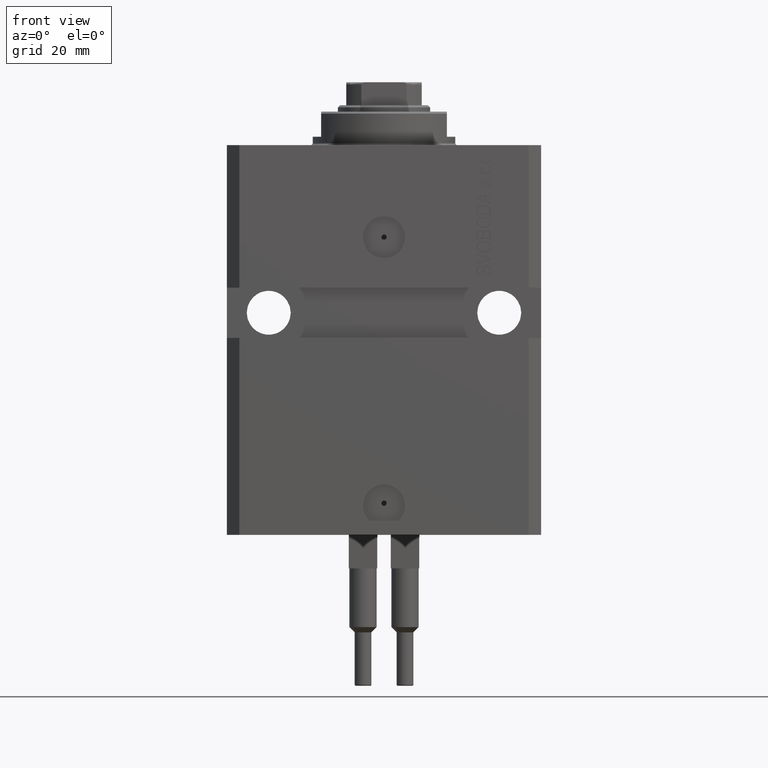
[diagram: clean part render]
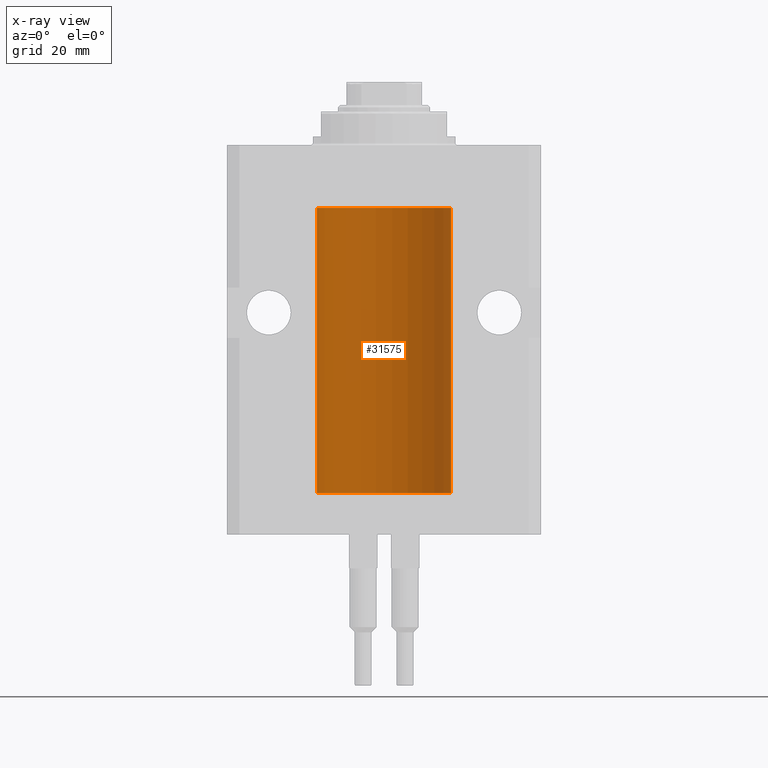
[diagram: x-ray — body ghosted, one internal face saturated and labeled with its STEP entity id]
A machine part, front view, then the same camera in x-ray: the body is ghosted and one INTERNAL B-rep face — a face not visible from any outside direction — is saturated and labeled: STEP entity #31575.
In plain terms, the highlighted cylindrical surface (partial cylindrical patch) has radius 16 mm, axis along (0, 0, 1).
Its self-contained STEP definition (entity closure, byte-faithful):
#351 = EDGE_CURVE ( 'NONE', #29589, #34502, #5041, .T. ) ;
#780 = EDGE_CURVE ( 'NONE', #23516, #44624, #7370, .T. ) ;
#1223 = CARTESIAN_POINT ( 'NONE',  ( -15.99070653155267685, 0.5573233280232986475, -21.67348148680506625 ) ) ;
#1613 = ORIENTED_EDGE ( 'NONE', *, *, #37134, .T. ) ;
#1846 = CARTESIAN_POINT ( 'NONE',  ( 16.00000000000013145, 3.665532692826917502E-13, -80.37499999999657518 ) ) ;
#2580 = CARTESIAN_POINT ( 'NONE',  ( -15.98844267028591126, 0.6088369347963299427, -81.16324735024326742 ) ) ;
#2703 = DIRECTION ( 'NONE',  ( 1.000000000000000000, 0.000000000000000000, 0.000000000000000000 ) ) ;
#3054 = CARTESIAN_POINT ( 'NONE',  ( 16.00000000000000000, 0.000000000000000000, -83.09999999999999432 ) ) ;
#3342 = CARTESIAN_POINT ( 'NONE',  ( 15.99228275317787507, 0.5002975944204000047, -21.61642014570181303 ) ) ;
#3358 = CARTESIAN_POINT ( 'NONE',  ( 16.00000000000000711, 0.08261762387943046015, -81.62499999999998579 ) ) ;
#4197 = LINE ( 'NONE', #33928, #26675 ) ;
#4445 = CARTESIAN_POINT ( 'NONE',  ( 15.98778830858103817, 0.6249999999997223332, -80.91847885046215083 ) ) ;
#4580 = AXIS2_PLACEMENT_3D ( 'NONE', #6299, #13867, #21166 ) ;
#4806 = EDGE_CURVE ( 'NONE', #39277, #23516, #16679, .T. ) ;
#4951 = B_SPLINE_CURVE_WITH_KNOTS ( 'NONE', 3,
 ( #43117, #35317, #9745, #38252, #19756, #1223, #30935, #45814, #8780, #46052, #16834, #16581, #5122, #20005 ),
 .UNSPECIFIED., .F., .F.,
 ( 4, 2, 2, 2, 2, 2, 4 ),
 ( 1.597328219370744179E-19, 0.0002442776652680942405, 0.0004885553305361882643, 0.0009771106610723839011, 0.001221388326340481665, 0.001465665991608579430, 0.001954221322144767369 ),
 .UNSPECIFIED. ) ;
#5041 = B_SPLINE_CURVE_WITH_KNOTS ( 'NONE', 3,
 ( #46211, #27702, #24068, #9194, #38900, #32775, #47656, #25504, #2580, #25733, #25257, #33013, #21596, #40092 ),
 .UNSPECIFIED., .F., .F.,
 ( 4, 2, 2, 2, 2, 2, 4 ),
 ( 9.758298632737495203E-19, 0.0002442776652680926142, 0.0004885553305361842527, 0.0009771106610723674212, 0.001221388326340458897, 0.001465665991608550590, 0.001954221322144762164 ),
 .UNSPECIFIED. ) ;
#5122 = CARTESIAN_POINT ( 'NONE',  ( -16.00000000000000000, 0.1631714642025800244, -22.62499999999985789 ) ) ;
#5893 = CARTESIAN_POINT ( 'NONE',  ( 15.98778830858070954, 0.6250000000079481977, -21.99999999999914735 ) ) ;
#6299 = CARTESIAN_POINT ( 'NONE',  ( 0.000000000000000000, 0.000000000000000000, -83.09999999999999432 ) ) ;
#6375 = CARTESIAN_POINT ( 'NONE',  ( 15.99934183755190986, 0.1636877470526783007, -22.60872690654068151 ) ) ;
#6534 = CARTESIAN_POINT ( 'NONE',  ( 15.98778830858104172, 0.6249999999996183053, -21.91847885046212951 ) ) ;
#6727 = B_SPLINE_CURVE_WITH_KNOTS ( 'NONE', 3,
 ( #10688, #3358, #26748, #42081, #8719, #19205, #41591, #18718 ),
 .UNSPECIFIED., .F., .F.,
 ( 4, 2, 2, 4 ),
 ( 1.783888443149829469E-18, 0.0002443331572175111519, 0.0004886663144350204607, 0.0009773326288700682433 ),
 .UNSPECIFIED. ) ;
#6734 = ORIENTED_EDGE ( 'NONE', *, *, #351, .T. ) ;
#7370 = LINE ( 'NONE', #37091, #17029 ) ;
#7431 = LINE ( 'NONE', #48133, #21326 ) ;
#7471 = ORIENTED_EDGE ( 'NONE', *, *, #18056, .T. ) ;
#7586 = ORIENTED_EDGE ( 'NONE', *, *, #28906, .T. ) ;
#7597 = EDGE_LOOP ( 'NONE', ( #35476, #16259, #7586, #21554, #30516, #47589, #7471, #29288, #21022, #8704, #46079, #1613, #38092, #6734 ) ) ;
#8349 = CARTESIAN_POINT ( 'NONE',  ( -16.00000000000000000, 1.959434878635765131E-15, -83.09999999999999432 ) ) ;
#8386 = VERTEX_POINT ( 'NONE', #8349 ) ;
#8704 = ORIENTED_EDGE ( 'NONE', *, *, #35992, .T. ) ;
#8719 = CARTESIAN_POINT ( 'NONE',  ( 15.99548458234361092, 0.3844468804816182916, -81.49947786696354513 ) ) ;
#8780 = CARTESIAN_POINT ( 'NONE',  ( -15.98844267028591482, 0.6088369347963316081, -22.16324735024328518 ) ) ;
#9123 = EDGE_CURVE ( 'NONE', #20869, #39277, #6727, .T. ) ;
#9194 = CARTESIAN_POINT ( 'NONE',  ( -15.99707730059171595, 0.3150375992092317445, -80.45402333202569878 ) ) ;
#9745 = CARTESIAN_POINT ( 'NONE',  ( -15.99934216141748244, 0.1636497843296417787, -21.39126528029306229 ) ) ;
#10100 = DIRECTION ( 'NONE',  ( -0.000000000000000000, -0.000000000000000000, 1.000000000000000000 ) ) ;
#10315 = CARTESIAN_POINT ( 'NONE',  ( -16.00000000000000000, 1.959434878635765131E-15, -15.00000000000000000 ) ) ;
#10688 = CARTESIAN_POINT ( 'NONE',  ( 16.00000000000000000, -1.835653844722709729E-15, -81.62500000000000000 ) ) ;
#10912 = CARTESIAN_POINT ( 'NONE',  ( 15.98844460043492077, 0.6087869699336542206, -21.83657454967558564 ) ) ;
#12243 = CARTESIAN_POINT ( 'NONE',  ( -16.00000000000000000, -1.092378585547345056E-14, -80.37500000000000000 ) ) ;
#13867 = DIRECTION ( 'NONE',  ( 0.000000000000000000, 0.000000000000000000, 1.000000000000000000 ) ) ;
#13906 = EDGE_CURVE ( 'NONE', #18113, #15878, #18148, .T. ) ;
#13940 = CARTESIAN_POINT ( 'NONE',  ( 15.98778830858101685, 0.6250000000001204592, -22.16311639173018833 ) ) ;
#14055 = CARTESIAN_POINT ( 'NONE',  ( 15.98844460043491367, 0.6087869699337551399, -80.83657454967556077 ) ) ;
#14096 = CARTESIAN_POINT ( 'NONE',  ( 15.99070695999104252, 0.5461439696926363441, -21.68526802364053552 ) ) ;
#14403 = CARTESIAN_POINT ( 'NONE',  ( 15.99070366873610993, 0.5574063959866685236, -22.32639436837549951 ) ) ;
#14572 = VECTOR ( 'NONE', #17217, 1000.000000000000000 ) ;
#15229 = AXIS2_PLACEMENT_3D ( 'NONE', #43164, #24909, #2703 ) ;
#15370 = CARTESIAN_POINT ( 'NONE',  ( -16.00000000000000000, 1.643679961284177128E-16, -21.37499999999999645 ) ) ;
#15440 = DIRECTION ( 'NONE',  ( -0.000000000000000000, -0.000000000000000000, 1.000000000000000000 ) ) ;
#15673 = CARTESIAN_POINT ( 'NONE',  ( 15.99070695999103542, 0.5461439696927204990, -80.68526802364048933 ) ) ;
#15878 = VERTEX_POINT ( 'NONE', #10315 ) ;
#16259 = ORIENTED_EDGE ( 'NONE', *, *, #44239, .F. ) ;
#16581 = CARTESIAN_POINT ( 'NONE',  ( -15.99711699979842017, 0.3253759916140657737, -22.55856151623175521 ) ) ;
#16679 = B_SPLINE_CURVE_WITH_KNOTS ( 'NONE', 3,
 ( #37820, #4445, #14055, #15673, #21607, #41721, #26152, #45376 ),
 .UNSPECIFIED., .F., .F.,
 ( 4, 2, 2, 4 ),
 ( 0.0009773326288700682433, 0.001221554802188685399, 0.001465776975507302772, 0.001954221322144537518 ),
 .UNSPECIFIED. ) ;
#16834 = CARTESIAN_POINT ( 'NONE',  ( -15.99228023727724413, 0.5003781296993413674, -22.38347829554236057 ) ) ;
#17029 = VECTOR ( 'NONE', #34158, 1000.000000000000000 ) ;
#17217 = DIRECTION ( 'NONE',  ( -0.000000000000000000, -0.000000000000000000, 1.000000000000000000 ) ) ;
#17596 = CARTESIAN_POINT ( 'NONE',  ( 15.98778830858070954, 0.6250000000080517815, -80.99999999999916156 ) ) ;
#18056 = EDGE_CURVE ( 'NONE', #44624, #30065, #41679, .T. ) ;
#18113 = VERTEX_POINT ( 'NONE', #15370 ) ;
#18148 = LINE ( 'NONE', #43971, #14572 ) ;
#18718 = CARTESIAN_POINT ( 'NONE',  ( 15.98778830858070954, 0.6250000000080517815, -80.99999999999916156 ) ) ;
#19205 = CARTESIAN_POINT ( 'NONE',  ( 15.99070366873610638, 0.5574063959867601170, -81.32639436837554570 ) ) ;
#19756 = CARTESIAN_POINT ( 'NONE',  ( -15.99548640841683067, 0.3843705577988847377, -21.50046628527008608 ) ) ;
#20005 = CARTESIAN_POINT ( 'NONE',  ( -16.00000000000013145, 3.685127034031037939E-13, -22.62500000000341771 ) ) ;
#20110 = DIRECTION ( 'NONE',  ( -0.000000000000000000, -0.000000000000000000, 1.000000000000000000 ) ) ;
#20836 = CYLINDRICAL_SURFACE ( 'NONE', #30645, 16.00000000000000000 ) ;
#20869 = VERTEX_POINT ( 'NONE', #25575 ) ;
#21022 = ORIENTED_EDGE ( 'NONE', *, *, #28123, .T. ) ;
#21124 = CARTESIAN_POINT ( 'NONE',  ( -16.00000000000013145, 3.685127034031037939E-13, -22.62500000000341771 ) ) ;
#21166 = DIRECTION ( 'NONE',  ( 1.000000000000000000, 0.000000000000000000, 0.000000000000000000 ) ) ;
#21239 = CARTESIAN_POINT ( 'NONE',  ( 15.99707608081894783, 0.3151028052309810534, -22.54594170697727762 ) ) ;
#21326 = VECTOR ( 'NONE', #32357, 1000.000000000000000 ) ;
#21554 = ORIENTED_EDGE ( 'NONE', *, *, #9123, .T. ) ;
#21596 = CARTESIAN_POINT ( 'NONE',  ( -15.99999999999998934, 0.1631714642025800244, -81.62499999999985789 ) ) ;
#21607 = CARTESIAN_POINT ( 'NONE',  ( 15.99228275317786441, 0.5002975944204781644, -80.61642014570176684 ) ) ;
#22252 = CIRCLE ( 'NONE', #15229, 16.00000000000000000 ) ;
#22635 = CARTESIAN_POINT ( 'NONE',  ( 16.00000000000013145, 3.665532684555111376E-13, -21.37499999999658229 ) ) ;
#23516 = VERTEX_POINT ( 'NONE', #1846 ) ;
#24068 = CARTESIAN_POINT ( 'NONE',  ( -15.99934216141748244, 0.1636497843296328414, -80.39126528029306940 ) ) ;
#24256 = FACE_OUTER_BOUND ( 'NONE', #7597, .T. ) ;
#24671 = CARTESIAN_POINT ( 'NONE',  ( 16.00000000000000711, 0.08261762387942241104, -22.62499999999997158 ) ) ;
#24909 = DIRECTION ( 'NONE',  ( 0.000000000000000000, 0.000000000000000000, 1.000000000000000000 ) ) ;
#25257 = CARTESIAN_POINT ( 'NONE',  ( -15.99228023727724057, 0.5003781296993380368, -81.38347829554238899 ) ) ;
#25504 = CARTESIAN_POINT ( 'NONE',  ( -15.98778717651346071, 0.6250289588122120987, -81.08131585687047505 ) ) ;
#25575 = CARTESIAN_POINT ( 'NONE',  ( 16.00000000000000000, -1.835653844722709729E-15, -81.62500000000000000 ) ) ;
#25733 = CARTESIAN_POINT ( 'NONE',  ( -15.99070426498503572, 0.5462220647145633601, -81.31460064614144301 ) ) ;
#25871 = EDGE_CURVE ( 'NONE', #29589, #36061, #4197, .T. ) ;
#26113 = VERTEX_POINT ( 'NONE', #45024 ) ;
#26152 = CARTESIAN_POINT ( 'NONE',  ( 15.99999999999999645, 0.1631343969470158417, -80.37500000000019895 ) ) ;
#26675 = VECTOR ( 'NONE', #15440, 1000.000000000000000 ) ;
#26748 = CARTESIAN_POINT ( 'NONE',  ( 15.99934183755190986, 0.1636877470527013101, -81.60872690654072414 ) ) ;
#27647 = CARTESIAN_POINT ( 'NONE',  ( -16.00000000000000000, 1.959434878635765131E-15, -83.09999999999999432 ) ) ;
#27702 = CARTESIAN_POINT ( 'NONE',  ( -16.00000000000000711, 0.08259886010188864647, -80.37500000000001421 ) ) ;
#28123 = EDGE_CURVE ( 'NONE', #33183, #29384, #36192, .T. ) ;
#28906 = EDGE_CURVE ( 'NONE', #26113, #20869, #7431, .T. ) ;
#29177 = CARTESIAN_POINT ( 'NONE',  ( 15.98778830858070954, 0.6250000000079481977, -21.99999999999914735 ) ) ;
#29288 = ORIENTED_EDGE ( 'NONE', *, *, #44402, .T. ) ;
#29384 = VERTEX_POINT ( 'NONE', #36137 ) ;
#29589 = VERTEX_POINT ( 'NONE', #12243 ) ;
#30065 = VERTEX_POINT ( 'NONE', #41103 ) ;
#30516 = ORIENTED_EDGE ( 'NONE', *, *, #4806, .T. ) ;
#30537 = EDGE_CURVE ( 'NONE', #8386, #34502, #34225, .T. ) ;
#30645 = AXIS2_PLACEMENT_3D ( 'NONE', #43474, #10100, #42993 ) ;
#30935 = CARTESIAN_POINT ( 'NONE',  ( -15.98779057735153941, 0.6249419637998100407, -21.83670145863507273 ) ) ;
#31575 = ADVANCED_FACE ( 'NONE', ( #24256 ), #20836, .F. ) ;
#32357 = DIRECTION ( 'NONE',  ( -0.000000000000000000, -0.000000000000000000, 1.000000000000000000 ) ) ;
#32770 = DIRECTION ( 'NONE',  ( -0.000000000000000000, -0.000000000000000000, 1.000000000000000000 ) ) ;
#32775 = CARTESIAN_POINT ( 'NONE',  ( -15.99070653155268396, 0.5573233280232950948, -80.67348148680508757 ) ) ;
#33013 = CARTESIAN_POINT ( 'NONE',  ( -15.99711699979841306, 0.3253759916140630537, -81.55856151623173389 ) ) ;
#33183 = VERTEX_POINT ( 'NONE', #22635 ) ;
#33309 = CARTESIAN_POINT ( 'NONE',  ( 15.99999999999999289, 0.1631343969470015476, -21.37500000000020606 ) ) ;
#33928 = CARTESIAN_POINT ( 'NONE',  ( -16.00000000000000000, 1.959434878635765131E-15, -83.09999999999999432 ) ) ;
#34158 = DIRECTION ( 'NONE',  ( -0.000000000000000000, -0.000000000000000000, 1.000000000000000000 ) ) ;
#34225 = LINE ( 'NONE', #27647, #39937 ) ;
#34502 = VERTEX_POINT ( 'NONE', #44091 ) ;
#35292 = VECTOR ( 'NONE', #32770, 1000.000000000000000 ) ;
#35317 = CARTESIAN_POINT ( 'NONE',  ( -16.00000000000000711, 0.08259886010189904093, -21.37500000000000000 ) ) ;
#35476 = ORIENTED_EDGE ( 'NONE', *, *, #30537, .F. ) ;
#35992 = EDGE_CURVE ( 'NONE', #29384, #15878, #22252, .T. ) ;
#36061 = VERTEX_POINT ( 'NONE', #21124 ) ;
#36090 = CARTESIAN_POINT ( 'NONE',  ( 15.99548458234361092, 0.3844468804815581731, -22.49947786696349894 ) ) ;
#36137 = CARTESIAN_POINT ( 'NONE',  ( 16.00000000000000000, 0.000000000000000000, -15.00000000000000000 ) ) ;
#36192 = LINE ( 'NONE', #3054, #35292 ) ;
#36255 = CARTESIAN_POINT ( 'NONE',  ( 15.99711856062700122, 0.3252985083513915687, -21.44140297987714661 ) ) ;
#36361 = B_SPLINE_CURVE_WITH_KNOTS ( 'NONE', 3,
 ( #29177, #6534, #10912, #14096, #3342, #36255, #33309, #43806 ),
 .UNSPECIFIED., .F., .F.,
 ( 4, 2, 2, 4 ),
 ( 0.0009773326288699728335, 0.001221554802188567438, 0.001465776975507162259, 0.001954221322144344530 ),
 .UNSPECIFIED. ) ;
#36391 = CARTESIAN_POINT ( 'NONE',  ( 16.00000000000000000, 6.728408811789801767E-16, -22.62500000000000000 ) ) ;
#37091 = CARTESIAN_POINT ( 'NONE',  ( 16.00000000000000000, 0.000000000000000000, -83.09999999999999432 ) ) ;
#37134 = EDGE_CURVE ( 'NONE', #18113, #36061, #4951, .T. ) ;
#37820 = CARTESIAN_POINT ( 'NONE',  ( 15.98778830858070954, 0.6250000000080517815, -80.99999999999916156 ) ) ;
#38092 = ORIENTED_EDGE ( 'NONE', *, *, #25871, .F. ) ;
#38252 = CARTESIAN_POINT ( 'NONE',  ( -15.99707730059171240, 0.3150375992092407373, -21.45402333202571654 ) ) ;
#38900 = CARTESIAN_POINT ( 'NONE',  ( -15.99548640841682712, 0.3843705577988805189, -80.50046628527006476 ) ) ;
#39277 = VERTEX_POINT ( 'NONE', #17596 ) ;
#39937 = VECTOR ( 'NONE', #20110, 1000.000000000000000 ) ;
#40092 = CARTESIAN_POINT ( 'NONE',  ( -16.00000000000013145, 3.685127046438747128E-13, -81.62500000000342482 ) ) ;
#41103 = CARTESIAN_POINT ( 'NONE',  ( 15.98778830858070954, 0.6250000000079481977, -21.99999999999914735 ) ) ;
#41591 = CARTESIAN_POINT ( 'NONE',  ( 15.98778830858101152, 0.6250000000002222666, -81.16311639173022741 ) ) ;
#41679 = B_SPLINE_CURVE_WITH_KNOTS ( 'NONE', 3,
 ( #47781, #24671, #6375, #21239, #36090, #14403, #13940, #5893 ),
 .UNSPECIFIED., .F., .F.,
 ( 4, 2, 2, 4 ),
 ( 6.538667818360814107E-19, 0.0002443331572174917989, 0.0004886663144349829473, 0.0009773326288699728335 ),
 .UNSPECIFIED. ) ;
#41721 = CARTESIAN_POINT ( 'NONE',  ( 15.99711856062700477, 0.3252985083514284281, -80.44140297987711108 ) ) ;
#42081 = CARTESIAN_POINT ( 'NONE',  ( 15.99707608081895138, 0.3151028052310259620, -81.54594170697733091 ) ) ;
#42993 = DIRECTION ( 'NONE',  ( 1.000000000000000000, 0.000000000000000000, 0.000000000000000000 ) ) ;
#43117 = CARTESIAN_POINT ( 'NONE',  ( -16.00000000000000000, 1.643679961284177128E-16, -21.37499999999999645 ) ) ;
#43164 = CARTESIAN_POINT ( 'NONE',  ( 0.000000000000000000, 0.000000000000000000, -15.00000000000000000 ) ) ;
#43474 = CARTESIAN_POINT ( 'NONE',  ( 0.000000000000000000, 0.000000000000000000, -83.09999999999999432 ) ) ;
#43806 = CARTESIAN_POINT ( 'NONE',  ( 16.00000000000013145, 3.665532684555111376E-13, -21.37499999999658229 ) ) ;
#43971 = CARTESIAN_POINT ( 'NONE',  ( -16.00000000000000000, 1.959434878635765131E-15, -83.09999999999999432 ) ) ;
#44091 = CARTESIAN_POINT ( 'NONE',  ( -16.00000000000013145, 3.685127046438747128E-13, -81.62500000000342482 ) ) ;
#44239 = EDGE_CURVE ( 'NONE', #26113, #8386, #44277, .T. ) ;
#44277 = CIRCLE ( 'NONE', #4580, 16.00000000000000000 ) ;
#44402 = EDGE_CURVE ( 'NONE', #30065, #33183, #36361, .T. ) ;
#44624 = VERTEX_POINT ( 'NONE', #36391 ) ;
#45024 = CARTESIAN_POINT ( 'NONE',  ( 16.00000000000000000, 0.000000000000000000, -83.09999999999999432 ) ) ;
#45376 = CARTESIAN_POINT ( 'NONE',  ( 16.00000000000013145, 3.665532692826917502E-13, -80.37499999999657518 ) ) ;
#45814 = CARTESIAN_POINT ( 'NONE',  ( -15.98778717651346071, 0.6250289588122140971, -22.08131585687052478 ) ) ;
#46052 = CARTESIAN_POINT ( 'NONE',  ( -15.99070426498503217, 0.5462220647145618058, -22.31460064614143590 ) ) ;
#46079 = ORIENTED_EDGE ( 'NONE', *, *, #13906, .F. ) ;
#46211 = CARTESIAN_POINT ( 'NONE',  ( -16.00000000000000000, -1.092378585547345056E-14, -80.37500000000000000 ) ) ;
#47589 = ORIENTED_EDGE ( 'NONE', *, *, #780, .T. ) ;
#47656 = CARTESIAN_POINT ( 'NONE',  ( -15.98779057735153941, 0.6249419637998040455, -80.83670145863506207 ) ) ;
#47781 = CARTESIAN_POINT ( 'NONE',  ( 16.00000000000000000, 6.728408811789801767E-16, -22.62500000000000000 ) ) ;
#48133 = CARTESIAN_POINT ( 'NONE',  ( 16.00000000000000000, 0.000000000000000000, -83.09999999999999432 ) ) ;